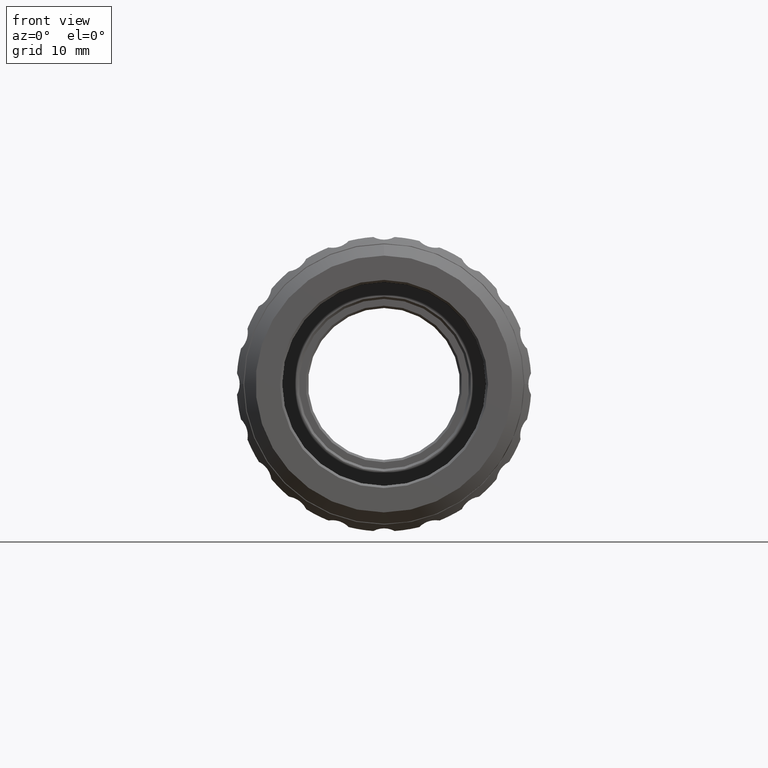
[diagram: clean part render]
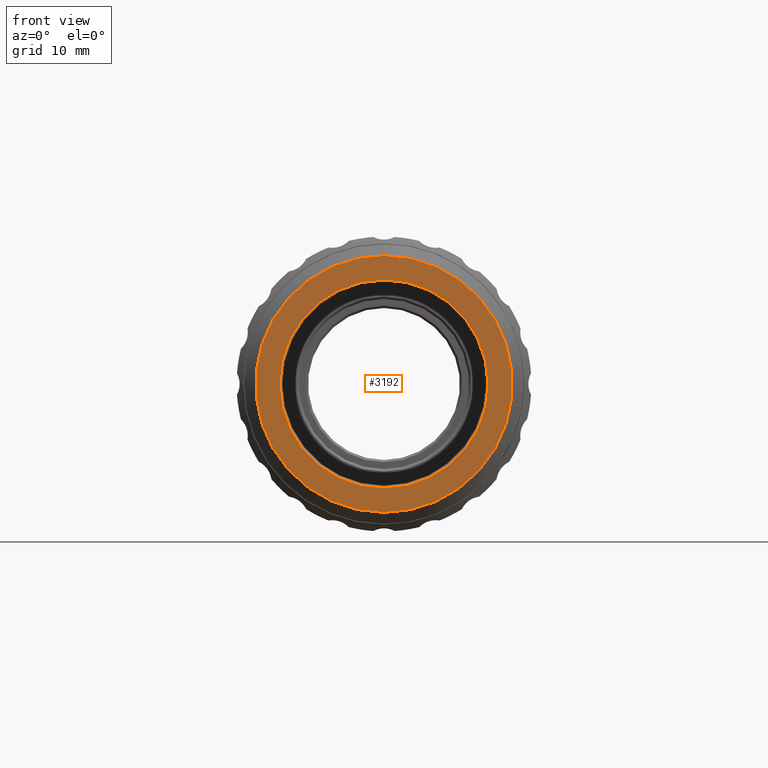
[diagram: same view with one face highlighted and labeled with its STEP entity id]
A machine part, front view. The second image highlights one B-rep face of the part: STEP entity #3192.
In plain terms, the highlighted planar face has unit normal (0, -1, 0).
Its self-contained STEP definition (entity closure, byte-faithful):
#974 = FACE_OUTER_BOUND ( 'NONE', #10410, .T. ) ;
#1067 = DIRECTION ( 'NONE',  ( 0.000000000000000000, -1.000000000000000000, 0.000000000000000000 ) ) ;
#1578 = DIRECTION ( 'NONE',  ( 0.000000000000000000, 1.000000000000000000, 0.000000000000000000 ) ) ;
#2294 = CARTESIAN_POINT ( 'NONE',  ( 0.000000000000000000, 1.911581472303619966, 16.89999999999999858 ) ) ;
#3192 = ADVANCED_FACE ( 'NONE', ( #11601, #974 ), #5681, .T. ) ;
#4162 = DIRECTION ( 'NONE',  ( 0.000000000000000000, 1.000000000000000000, 0.000000000000000000 ) ) ;
#5288 = DIRECTION ( 'NONE',  ( 1.000000000000000000, 0.000000000000000000, 0.000000000000000000 ) ) ;
#5681 = PLANE ( 'NONE',  #11827 ) ;
#5970 = CARTESIAN_POINT ( 'NONE',  ( 2.161501600495070001E-15, 1.911581472303619966, -16.89999999999999858 ) ) ;
#6025 = ORIENTED_EDGE ( 'NONE', *, *, #7668, .T. ) ;
#6088 = CARTESIAN_POINT ( 'NONE',  ( 0.000000000000000000, 1.911581472303619966, 0.000000000000000000 ) ) ;
#6175 = EDGE_CURVE ( 'NONE', #10952, #14912, #8893, .T. ) ;
#6195 = ORIENTED_EDGE ( 'NONE', *, *, #16684, .F. ) ;
#6973 = CIRCLE ( 'NONE', #10160, 13.70000000000030127 ) ;
#7668 = EDGE_CURVE ( 'NONE', #18053, #17866, #15308, .T. ) ;
#7708 = EDGE_LOOP ( 'NONE', ( #8545, #6025 ) ) ;
#7796 = CARTESIAN_POINT ( 'NONE',  ( 0.000000000000000000, 1.911581472303619966, 0.000000000000000000 ) ) ;
#8167 = CIRCLE ( 'NONE', #14878, 16.89999999999999858 ) ;
#8545 = ORIENTED_EDGE ( 'NONE', *, *, #9535, .T. ) ;
#8893 = CIRCLE ( 'NONE', #16229, 16.89999999999999858 ) ;
#9535 = EDGE_CURVE ( 'NONE', #17866, #18053, #6973, .T. ) ;
#10089 = DIRECTION ( 'NONE',  ( 0.000000000000000000, 0.000000000000000000, -1.000000000000000000 ) ) ;
#10160 = AXIS2_PLACEMENT_3D ( 'NONE', #6088, #1578, #10999 ) ;
#10410 = EDGE_LOOP ( 'NONE', ( #6195, #14236 ) ) ;
#10596 = CARTESIAN_POINT ( 'NONE',  ( 0.000000000000000000, 1.911581472303619966, 13.70000000000029061 ) ) ;
#10821 = DIRECTION ( 'NONE',  ( 0.000000000000000000, 1.000000000000000000, 0.000000000000000000 ) ) ;
#10952 = VERTEX_POINT ( 'NONE', #5970 ) ;
#10999 = DIRECTION ( 'NONE',  ( 1.000000000000000000, 0.000000000000000000, 0.000000000000000000 ) ) ;
#11596 = CARTESIAN_POINT ( 'NONE',  ( 0.000000000000000000, 1.911581472303619966, 0.000000000000000000 ) ) ;
#11601 = FACE_BOUND ( 'NONE', #7708, .T. ) ;
#11827 = AXIS2_PLACEMENT_3D ( 'NONE', #2294, #1067, #10089 ) ;
#12743 = AXIS2_PLACEMENT_3D ( 'NONE', #13462, #4162, #13162 ) ;
#12791 = DIRECTION ( 'NONE',  ( 0.000000000000000000, 1.000000000000000000, 0.000000000000000000 ) ) ;
#13162 = DIRECTION ( 'NONE',  ( 1.000000000000000000, 0.000000000000000000, 0.000000000000000000 ) ) ;
#13462 = CARTESIAN_POINT ( 'NONE',  ( 0.000000000000000000, 1.911581472303619966, 0.000000000000000000 ) ) ;
#14176 = CARTESIAN_POINT ( 'NONE',  ( -1.677766114831909474E-15, 1.911581472303619966, -13.70000000000029061 ) ) ;
#14236 = ORIENTED_EDGE ( 'NONE', *, *, #6175, .F. ) ;
#14878 = AXIS2_PLACEMENT_3D ( 'NONE', #7796, #10821, #18531 ) ;
#14912 = VERTEX_POINT ( 'NONE', #19269 ) ;
#15308 = CIRCLE ( 'NONE', #12743, 13.70000000000030127 ) ;
#16229 = AXIS2_PLACEMENT_3D ( 'NONE', #11596, #12791, #5288 ) ;
#16684 = EDGE_CURVE ( 'NONE', #14912, #10952, #8167, .T. ) ;
#17866 = VERTEX_POINT ( 'NONE', #10596 ) ;
#18053 = VERTEX_POINT ( 'NONE', #14176 ) ;
#18531 = DIRECTION ( 'NONE',  ( 1.000000000000000000, 0.000000000000000000, 0.000000000000000000 ) ) ;
#19269 = CARTESIAN_POINT ( 'NONE',  ( 0.000000000000000000, 1.911581472303619966, 16.89999999999999858 ) ) ;